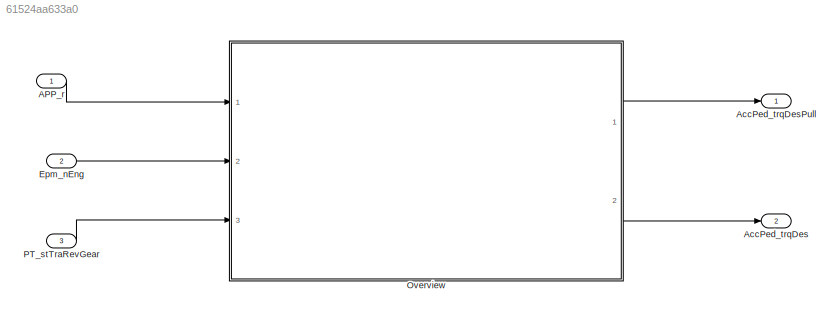
MODEL slx_61524aa633a0
KIND model
CONFIG AbsTol = auto
CONFIG EnableMultiTasking = off
CONFIG FixedStep = auto
CONFIG MaxStep = auto
CONFIG MinStep = auto
CONFIG RelTol = 1e-3
CONFIG SampleTimeConstraint = Unconstrained
CONFIG Solver = VariableStepAuto
CONFIG SolverName = VariableStepAuto
CONFIG StartTime = 0.0
CONFIG StopTime = 10.0
BLOCK [Inport] APP_r
  IconDisplay = Port number
BLOCK [Outport] AccPed_trqDes
  IconDisplay = Port number
  Port = 2
BLOCK [Outport] AccPed_trqDesPull
  IconDisplay = Port number
BLOCK [Inport] Epm_nEng
  IconDisplay = Port number
  Port = 2
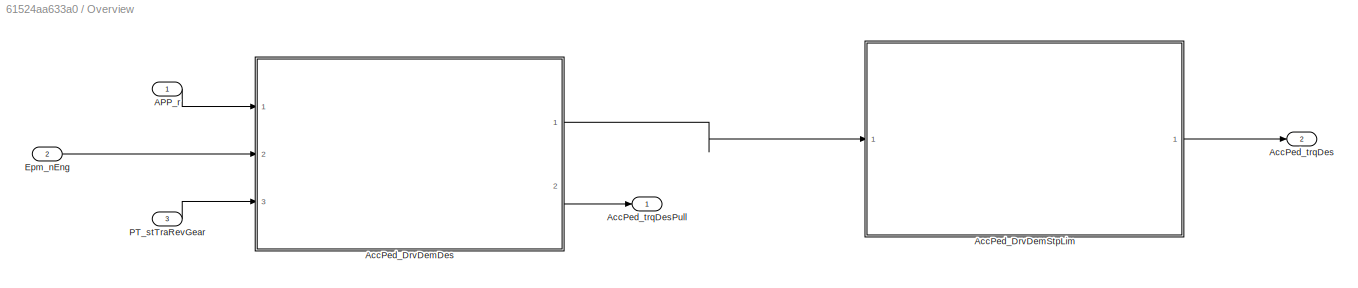
BLOCK [SubSystem] Overview
  Ports = [3, 2]
  RequestExecContextInheritance = off
BLOCK [Inport] Overview/APP_r
  IconDisplay = Port number
BLOCK [ModelReference] Overview/AccPed_DrvDemDes
  ModelNameDialog = AccPed_DrvDemDes
  ModelReferenceVersion = 1.51
  Ports = [3, 2]
BLOCK [ModelReference] Overview/AccPed_DrvDemStpLim
  ModelNameDialog = AccPed_DrvDemStpLim
  ModelReferenceVersion = 1.53
  Ports = [1, 1]
BLOCK [Outport] Overview/AccPed_trqDes
  IconDisplay = Port number
  Port = 2
BLOCK [Outport] Overview/AccPed_trqDesPull
  IconDisplay = Port number
BLOCK [Inport] Overview/Epm_nEng
  IconDisplay = Port number
  Port = 2
BLOCK [Inport] Overview/PT_stTraRevGear
  IconDisplay = Port number
  Port = 3
BLOCK [Inport] PT_stTraRevGear
  IconDisplay = Port number
  Port = 3
LINE APP_r:1 -> Overview:1
LINE Epm_nEng:1 -> Overview:2
LINE Overview/APP_r:1 -> Overview/AccPed_DrvDemDes:1
LINE Overview/AccPed_DrvDemDes:1 -> Overview/AccPed_DrvDemStpLim:1
LINE Overview/AccPed_DrvDemDes:2 -> Overview/AccPed_trqDesPull:1
LINE Overview/AccPed_DrvDemStpLim:1 -> Overview/AccPed_trqDes:1
LINE Overview/Epm_nEng:1 -> Overview/AccPed_DrvDemDes:2
LINE Overview/PT_stTraRevGear:1 -> Overview/AccPed_DrvDemDes:3
LINE Overview:1 -> AccPed_trqDesPull:1
LINE Overview:2 -> AccPed_trqDes:1
LINE PT_stTraRevGear:1 -> Overview:3
